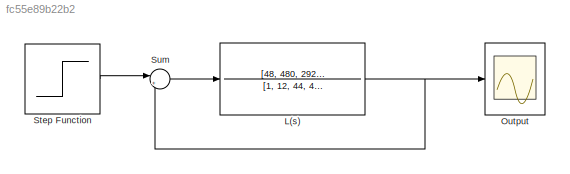
MODEL slx_fc55e89b22b2
KIND model
CONFIG AbsTol = auto
CONFIG EnableMultiTasking = off
CONFIG FixedStep = auto
CONFIG MaxStep = auto
CONFIG MinStep = auto
CONFIG RelTol = 1e-3
CONFIG SampleTimeConstraint = Unconstrained
CONFIG SolverName = VariableStepAuto
CONFIG StartTime = 0.0
CONFIG StopTime = 20
BLOCK [TransferFcn] L(s)
  Denominator = [1, 12, 44, 48]
  Numerator = [48, 480, 2928]
BLOCK [Scope] Output
  Floating = off
  NumInputPorts = 1
  ScopeSpecificationString = Simulink.scopes.TimeScopeBlockCfg('CurrentConfiguration', extmgr.ConfigurationSet(extmgr.Configuration('Core','General UI',true,'FigureColor',[1 1 1]),extmgr.Configuration('Core','Source UI',true),extmgr.Configuration('Sources','WiredSimulink',true),extmgr.Configuration('Visuals','Time Domain',true,'SerializedDisplays',{struct('MinYLimReal','-0.12691','MaxYLimReal','1.14223','YLabelReal','','MinYL...<+1447ch>
BLOCK [Step] Step Function
  SampleTime = 0
BLOCK [Sum] Sum
  Inputs = |+-
NET L(s):1 -> Output:1, Sum:2
LINE Step Function:1 -> Sum:1
LINE Sum:1 -> L(s):1
note: NET lines group one-source signal fan-out (src -> all destinations, sorted); 1:1 wires keep LINE
